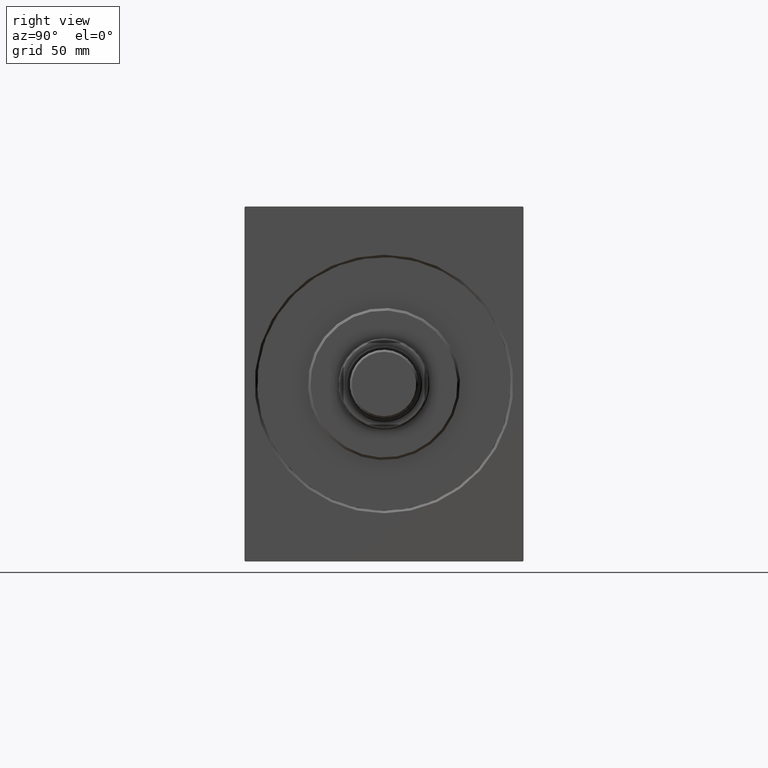
[diagram: clean part render]
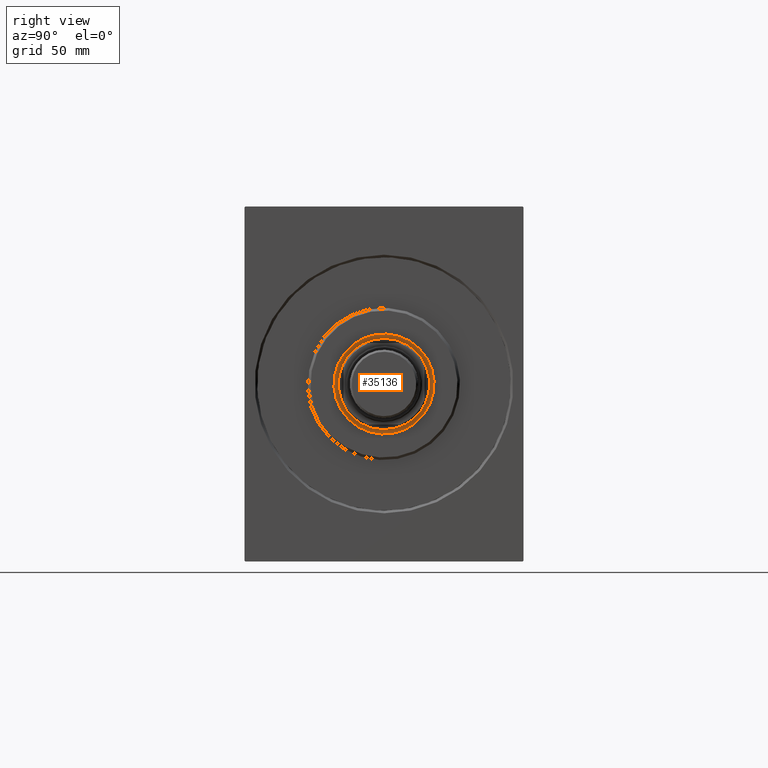
[diagram: same view with one face highlighted and labeled with its STEP entity id]
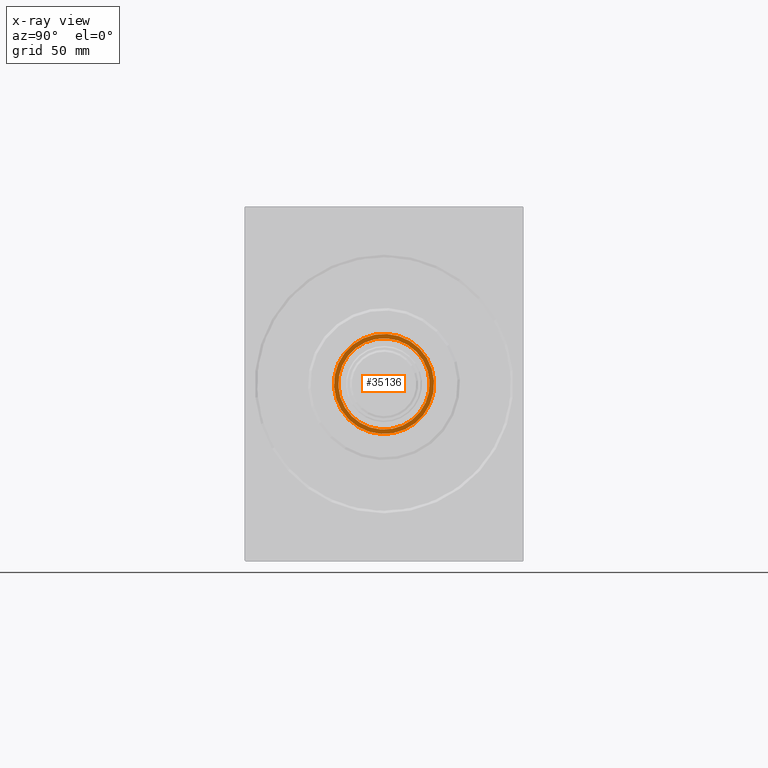
[diagram: x-ray of the same camera — body ghosted, the highlighted face saturated]
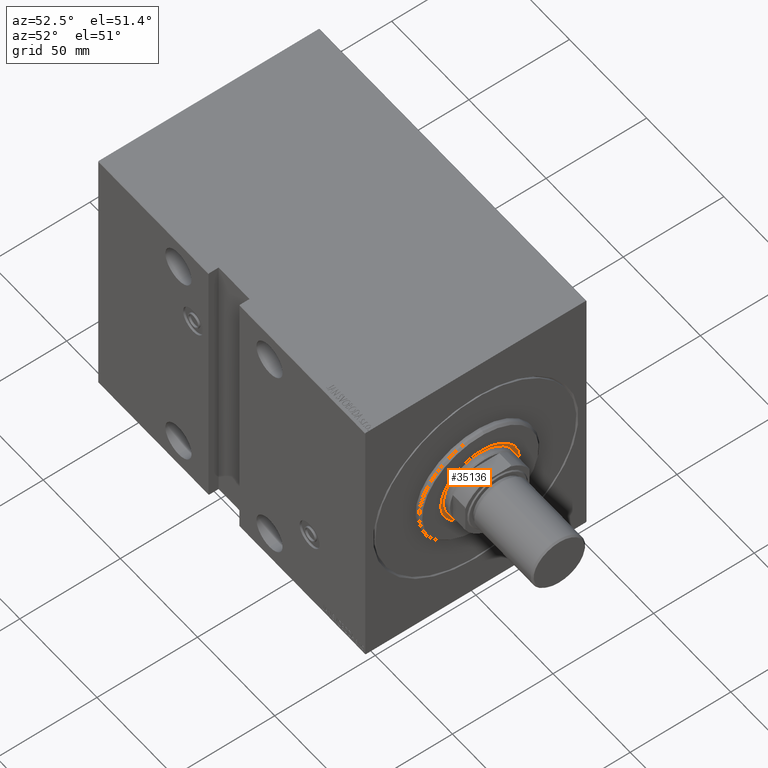
[diagram: same view with one face highlighted and labeled with its STEP entity id]
A machine part, right view. The second image highlights one B-rep face of the part: STEP entity #35136.
The next image is the same camera in x-ray: the body ghosted, the highlighted face saturated — about 0% of this face is hidden behind the body in this view.
A second angle (auxiliary view) of the same face is appended — the face is thin or edge-on in the first view.
In plain terms, the highlighted planar face has unit normal (1, -0, -0).
Its self-contained STEP definition (entity closure, byte-faithful):
#599 = DIRECTION ( 'NONE',  ( 1.000000000000000000, 0.000000000000000000, 0.000000000000000000 ) ) ;
#1273 = DIRECTION ( 'NONE',  ( 0.000000000000000000, 0.000000000000000000, -1.000000000000000000 ) ) ;
#1945 = DIRECTION ( 'NONE',  ( 1.000000000000000000, 0.000000000000000000, 0.000000000000000000 ) ) ;
#2496 = CIRCLE ( 'NONE', #6782, 19.75000000000000000 ) ;
#2740 = AXIS2_PLACEMENT_3D ( 'NONE', #5021, #32098, #11494 ) ;
#4180 = CIRCLE ( 'NONE', #34903, 18.00000000000000000 ) ;
#4655 = CARTESIAN_POINT ( 'NONE',  ( 2.499999999999998668, 0.000000000000000000, 0.000000000000000000 ) ) ;
#5021 = CARTESIAN_POINT ( 'NONE',  ( 2.500000000000000000, 0.000000000000000000, 0.000000000000000000 ) ) ;
#5244 = FACE_OUTER_BOUND ( 'NONE', #40908, .T. ) ;
#6221 = EDGE_CURVE ( 'NONE', #19474, #17782, #4180, .T. ) ;
#6782 = AXIS2_PLACEMENT_3D ( 'NONE', #21172, #599, #11319 ) ;
#7167 = CARTESIAN_POINT ( 'NONE',  ( 2.499999999999998668, 2.204364238465235428E-15, 18.00000000000000000 ) ) ;
#7662 = ORIENTED_EDGE ( 'NONE', *, *, #20904, .T. ) ;
#8551 = ORIENTED_EDGE ( 'NONE', *, *, #6221, .F. ) ;
#9903 = DIRECTION ( 'NONE',  ( 1.000000000000000000, 0.000000000000000000, 0.000000000000000000 ) ) ;
#10882 = EDGE_CURVE ( 'NONE', #11950, #20310, #43261, .T. ) ;
#11319 = DIRECTION ( 'NONE',  ( 0.000000000000000000, 0.000000000000000000, -1.000000000000000000 ) ) ;
#11494 = DIRECTION ( 'NONE',  ( 0.000000000000000000, 0.000000000000000000, -1.000000000000000000 ) ) ;
#11950 = VERTEX_POINT ( 'NONE', #14380 ) ;
#12239 = CARTESIAN_POINT ( 'NONE',  ( 2.499999999999998668, 0.000000000000000000, 0.000000000000000000 ) ) ;
#12289 = EDGE_LOOP ( 'NONE', ( #8551, #27459 ) ) ;
#14380 = CARTESIAN_POINT ( 'NONE',  ( 2.500000000000000000, 2.418677428316022726E-15, 19.75000000000000000 ) ) ;
#15150 = DIRECTION ( 'NONE',  ( 1.000000000000000000, 0.000000000000000000, 0.000000000000000000 ) ) ;
#17782 = VERTEX_POINT ( 'NONE', #7167 ) ;
#19101 = FACE_BOUND ( 'NONE', #12289, .T. ) ;
#19474 = VERTEX_POINT ( 'NONE', #25730 ) ;
#20310 = VERTEX_POINT ( 'NONE', #21265 ) ;
#20904 = EDGE_CURVE ( 'NONE', #20310, #11950, #2496, .T. ) ;
#21172 = CARTESIAN_POINT ( 'NONE',  ( 2.500000000000000000, 0.000000000000000000, 0.000000000000000000 ) ) ;
#21265 = CARTESIAN_POINT ( 'NONE',  ( 2.500000000000000000, 0.000000000000000000, -19.75000000000000000 ) ) ;
#22893 = DIRECTION ( 'NONE',  ( 0.000000000000000000, 0.000000000000000000, -1.000000000000000000 ) ) ;
#23951 = AXIS2_PLACEMENT_3D ( 'NONE', #40118, #9903, #22893 ) ;
#25730 = CARTESIAN_POINT ( 'NONE',  ( 2.499999999999998668, 0.000000000000000000, -18.00000000000000000 ) ) ;
#27459 = ORIENTED_EDGE ( 'NONE', *, *, #29585, .F. ) ;
#29585 = EDGE_CURVE ( 'NONE', #17782, #19474, #30540, .T. ) ;
#30540 = CIRCLE ( 'NONE', #35536, 18.00000000000000000 ) ;
#31020 = ORIENTED_EDGE ( 'NONE', *, *, #10882, .T. ) ;
#32098 = DIRECTION ( 'NONE',  ( 1.000000000000000000, 0.000000000000000000, 0.000000000000000000 ) ) ;
#34903 = AXIS2_PLACEMENT_3D ( 'NONE', #4655, #15150, #35742 ) ;
#35136 = ADVANCED_FACE ( 'NONE', ( #19101, #5244 ), #42153, .T. ) ;
#35536 = AXIS2_PLACEMENT_3D ( 'NONE', #12239, #1945, #1273 ) ;
#35742 = DIRECTION ( 'NONE',  ( 0.000000000000000000, 0.000000000000000000, -1.000000000000000000 ) ) ;
#40118 = CARTESIAN_POINT ( 'NONE',  ( 2.500000000000000000, 0.000000000000000000, 0.000000000000000000 ) ) ;
#40908 = EDGE_LOOP ( 'NONE', ( #7662, #31020 ) ) ;
#42153 = PLANE ( 'NONE',  #2740 ) ;
#43261 = CIRCLE ( 'NONE', #23951, 19.75000000000000000 ) ;